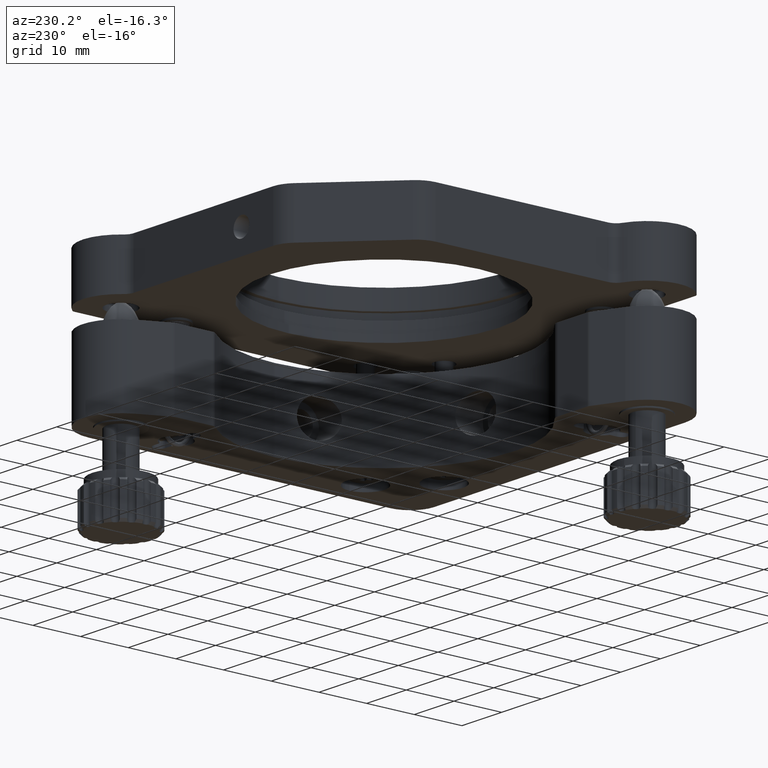
[diagram: clean part render]
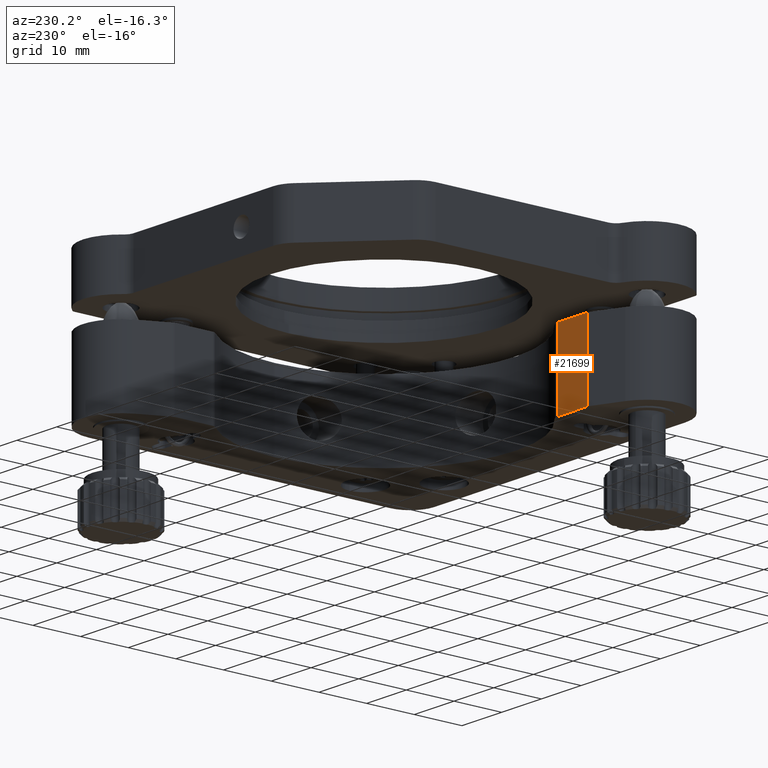
[diagram: same view with one face highlighted and labeled with its STEP entity id]
A machine part, auxiliary view. The second image highlights one B-rep face of the part: STEP entity #21699.
In plain terms, the highlighted planar face has unit normal (0, 1, 0).
Its self-contained STEP definition (entity closure, byte-faithful):
#78 = VECTOR ( 'NONE', #27329, 1000.000000000000000 ) ;
#828 = CARTESIAN_POINT ( 'NONE',  ( -42.35612357345402000, -1.044963300429933900, 42.20000000000001700 ) ) ;
#928 = LINE ( 'NONE', #30030, #78 ) ;
#3502 = DIRECTION ( 'NONE',  ( 0.0000000000000000000, 0.0000000000000000000, -1.000000000000000000 ) ) ;
#4645 = DIRECTION ( 'NONE',  ( -1.000000000000000000, 0.0000000000000000000, 0.0000000000000000000 ) ) ;
#6930 = CARTESIAN_POINT ( 'NONE',  ( -34.80102789049103500, -1.044963300429933900, 42.20000000000001700 ) ) ;
#7598 = LINE ( 'NONE', #828, #13782 ) ;
#9613 = DIRECTION ( 'NONE',  ( 0.0000000000000000000, 0.0000000000000000000, -1.000000000000000000 ) ) ;
#9786 = FACE_OUTER_BOUND ( 'NONE', #22318, .T. ) ;
#13782 = VECTOR ( 'NONE', #3502, 1000.000000000000000 ) ;
#13914 = VECTOR ( 'NONE', #15719, 1000.000000000000000 ) ;
#13945 = CARTESIAN_POINT ( 'NONE',  ( -42.35612357345402000, -1.044963300429933900, 26.40000000000001300 ) ) ;
#15719 = DIRECTION ( 'NONE',  ( 0.0000000000000000000, 0.0000000000000000000, -1.000000000000000000 ) ) ;
#15780 = EDGE_CURVE ( 'NONE', #23479, #33867, #23674, .T. ) ;
#16273 = ORIENTED_EDGE ( 'NONE', *, *, #20296, .T. ) ;
#19269 = EDGE_CURVE ( 'NONE', #24589, #24207, #928, .T. ) ;
#19543 = ORIENTED_EDGE ( 'NONE', *, *, #21986, .F. ) ;
#20296 = EDGE_CURVE ( 'NONE', #23479, #24589, #21071, .T. ) ;
#21071 = LINE ( 'NONE', #26439, #13914 ) ;
#21699 = ADVANCED_FACE ( 'NONE', ( #9786 ), #25536, .T. ) ;
#21986 = EDGE_CURVE ( 'NONE', #33867, #24207, #7598, .T. ) ;
#22318 = EDGE_LOOP ( 'NONE', ( #29582, #19543, #29662, #16273 ) ) ;
#22374 = CARTESIAN_POINT ( 'NONE',  ( -34.80102789049103500, -1.044963300429933900, 42.20000000000001700 ) ) ;
#23479 = VERTEX_POINT ( 'NONE', #22374 ) ;
#23674 = LINE ( 'NONE', #34101, #29935 ) ;
#24207 = VERTEX_POINT ( 'NONE', #13945 ) ;
#24589 = VERTEX_POINT ( 'NONE', #34710 ) ;
#25536 = PLANE ( 'NONE',  #33258 ) ;
#25649 = DIRECTION ( 'NONE',  ( 0.0000000000000000000, 1.000000000000000000, 0.0000000000000000000 ) ) ;
#26439 = CARTESIAN_POINT ( 'NONE',  ( -34.80102789049103500, -1.044963300429933900, 42.20000000000001700 ) ) ;
#27329 = DIRECTION ( 'NONE',  ( -1.000000000000000000, 0.0000000000000000000, 0.0000000000000000000 ) ) ;
#28847 = CARTESIAN_POINT ( 'NONE',  ( -42.35612357345402000, -1.044963300429933900, 42.20000000000001700 ) ) ;
#29582 = ORIENTED_EDGE ( 'NONE', *, *, #19269, .T. ) ;
#29662 = ORIENTED_EDGE ( 'NONE', *, *, #15780, .F. ) ;
#29935 = VECTOR ( 'NONE', #4645, 1000.000000000000000 ) ;
#30030 = CARTESIAN_POINT ( 'NONE',  ( -34.80102789049103500, -1.044963300429933900, 26.40000000000001300 ) ) ;
#33258 = AXIS2_PLACEMENT_3D ( 'NONE', #6930, #25649, #9613 ) ;
#33867 = VERTEX_POINT ( 'NONE', #28847 ) ;
#34101 = CARTESIAN_POINT ( 'NONE',  ( -34.80102789049103500, -1.044963300429933900, 42.20000000000001700 ) ) ;
#34710 = CARTESIAN_POINT ( 'NONE',  ( -34.80102789049103500, -1.044963300429933900, 26.40000000000001300 ) ) ;